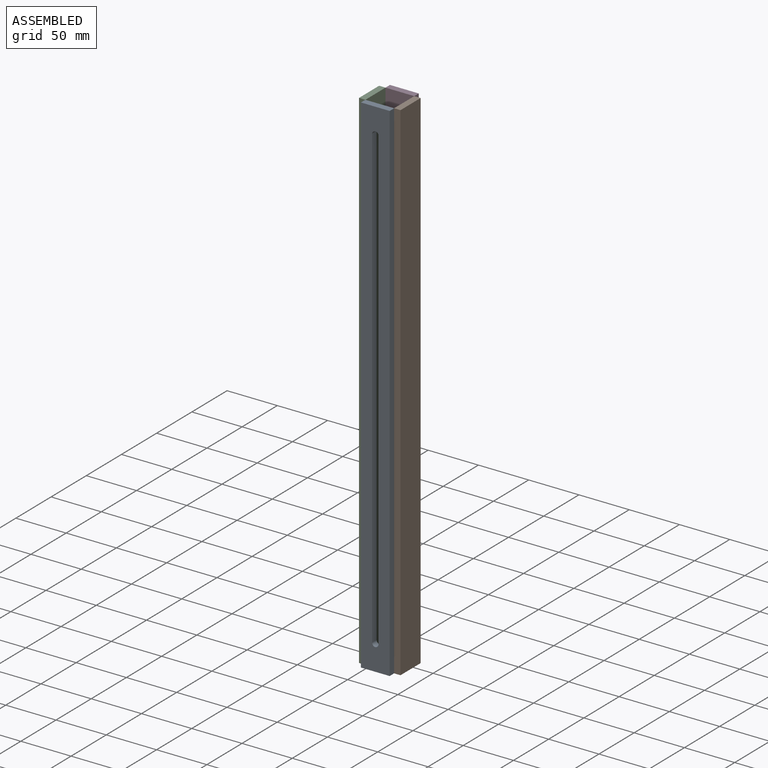
[diagram: assembled view]
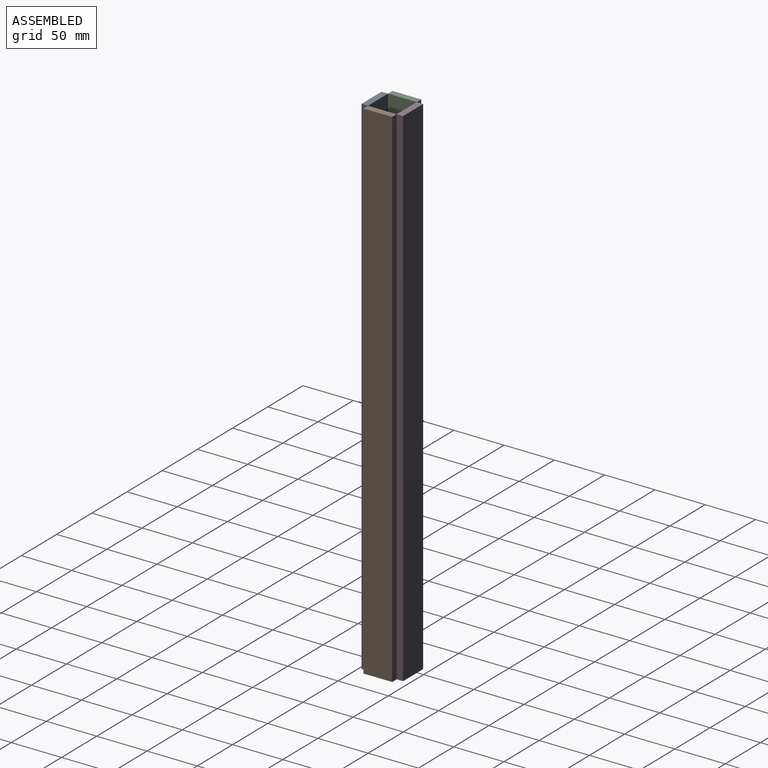
[diagram: assembled view, second angle]
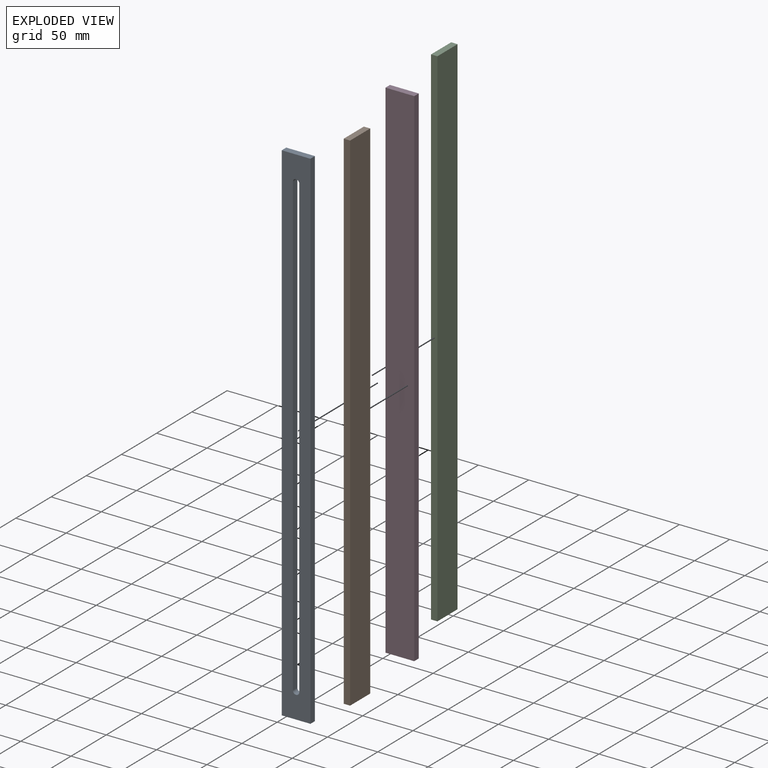
[diagram: exploded view]
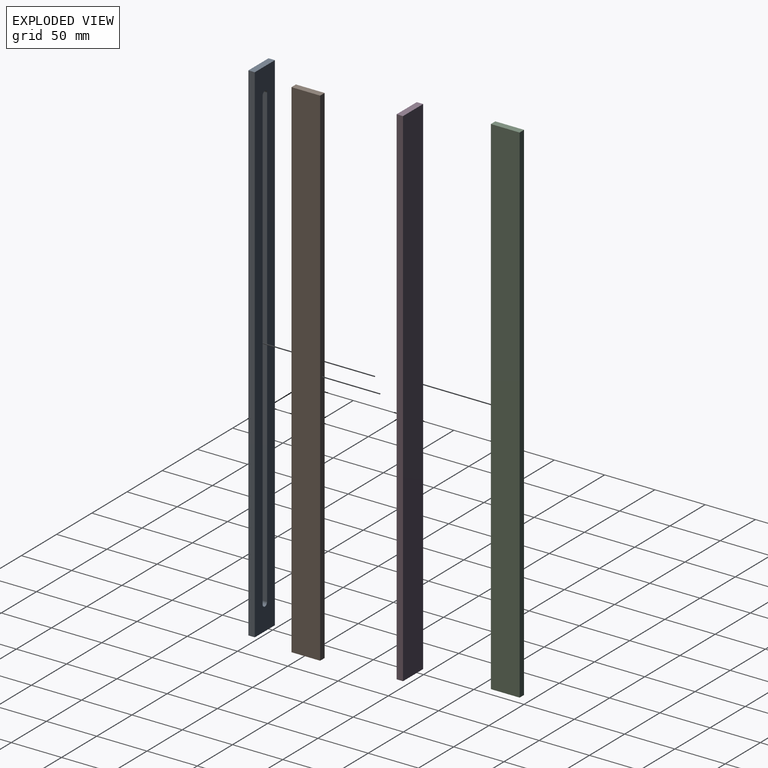
[diagram: exploded view, second angle]
ASSEMBLY  parts=4 mates=3
PART A: 10 faces, bbox 508x28.6x6.4 mm
  f0: plane 28.58x6.35mm, normal (-1,0,0), area 181.5mm2, adj f1,f7,f8,f9
  f1: plane 508x6.35mm, normal (0,-1,0), area 3225.8mm2, adj f0,f2,f8,f9
  f2: plane 28.58x6.35mm, normal (1,0,0), area 181.5mm2, adj f1,f7,f8,f9
  f3: cylinder r=3.17mm len=6.35mm, axis (0,0,-1), area 63.2mm2, adj f4,f6,f8,f9
  f4: plane 457.22x6.35mm, normal (0,1,0), area 2903.3mm2, adj f3,f5,f8,f9
  f5: cylinder r=3.17mm len=6.35mm, axis (0,0,-1), area 63.6mm2, adj f4,f6,f8,f9
  f6: plane 457.15x6.35mm, normal (0,-1,0), area 2902.9mm2, adj f3,f5,f8,f9
  f7: plane 508x6.35mm, normal (0,1,0), area 3225.8mm2, adj f0,f2,f8,f9
  f8: plane 508x28.58mm, normal (0,0,1), area 11581.3mm2, adj f0,f1,f2,f3,f4,f5,f6,f7
  f9: plane 508x28.58mm, normal (0,0,-1), area 11581.3mm2, adj f0,f1,f2,f3,f4,f5,f6,f7
PART B: 6 faces, bbox 508x28.6x6.4 mm
  f0: plane 28.58x6.35mm, normal (1,0,0), area 181.5mm2, adj f1,f3,f4,f5
  f1: plane 508x6.35mm, normal (0,1,0), area 3225.8mm2, adj f0,f2,f4,f5
  f2: plane 28.58x6.35mm, normal (-1,0,0), area 181.5mm2, adj f1,f3,f4,f5
  f3: plane 508x6.35mm, normal (0,-1,0), area 3225.8mm2, adj f0,f2,f4,f5
  f4: plane 508x28.58mm, normal (0,0,1), area 14516.1mm2, adj f0,f1,f2,f3
  f5: plane 508x28.58mm, normal (0,0,-1), area 14516.1mm2, adj f0,f1,f2,f3
PART C: same geometry as B
PART D: same geometry as B
PLACE A rot(axis=(0.58,0.58,-0.58),120deg) t=(204.62,-31.81,-210.3)mm
PLACE B rot(axis=(0,1,0),90deg) t=(33.56,255.43,-195.56)mm
PLACE C rot(axis=(0,1,0),90deg) t=(-1.36,255.43,-195.56)mm
PLACE D rot(axis=(0.58,0.58,-0.58),120deg) t=(292.22,3.12,-195.56)mm
MATE fastened C.f1 <-> D.f4  axis (0,1,0) through (4.99,-3.23,44.56)mm
MATE fastened A.f9 <-> B.f3  axis (0,1,0) through (33.56,-31.81,44.56)mm
MATE fastened D.f4 <-> B.f1  axis (0,-1,0) through (33.56,-3.23,44.56)mm
